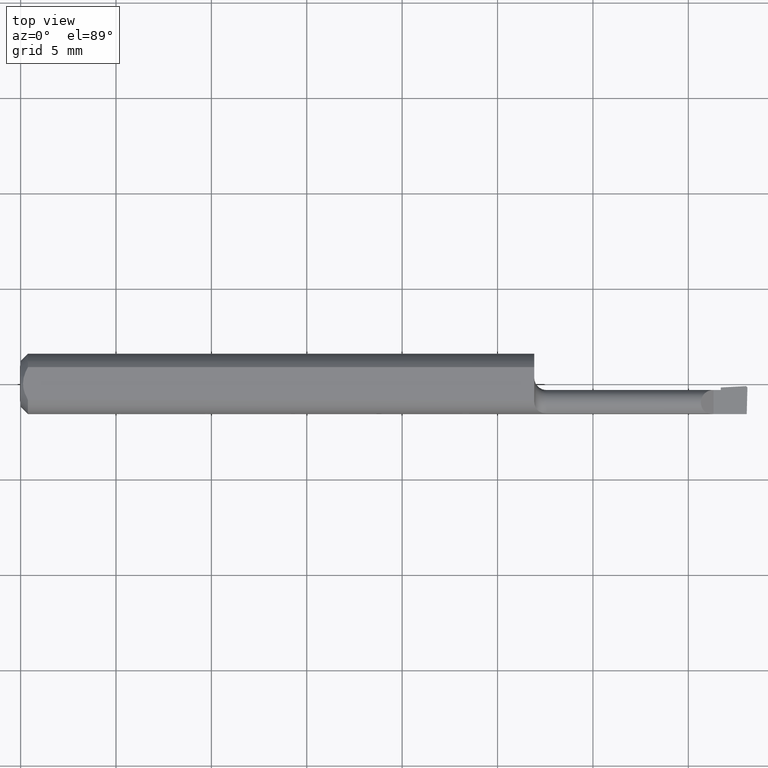
[diagram: clean part render]
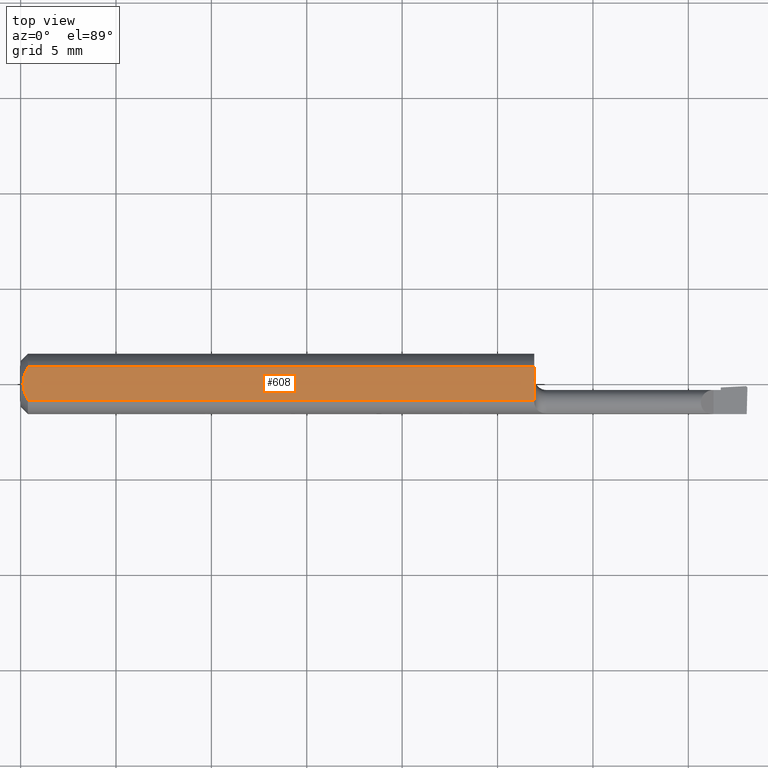
[diagram: same view with one face highlighted and labeled with its STEP entity id]
A machine part, top view. The second image highlights one B-rep face of the part: STEP entity #608.
In plain terms, the highlighted planar face has unit normal (0, -0, -1).
Its self-contained STEP definition (entity closure, byte-faithful):
#31 = CARTESIAN_POINT ( 'NONE',  ( 0.01500000000000000465, 0.03386738844375223462, 0.05234999999999997988 ) ) ;
#34 = CARTESIAN_POINT ( 'NONE',  ( 0.006064493299689842180, 0.01189382783781397189, 0.05235000000000000070 ) ) ;
#50 = CARTESIAN_POINT ( 'NONE',  ( 0.009678036133109307534, -0.02325481837211496039, 0.05235000000000000070 ) ) ;
#61 = CARTESIAN_POINT ( 'NONE',  ( 0.006057557792978140489, -0.01187252718384441616, 0.05234999999999998682 ) ) ;
#76 = B_SPLINE_CURVE_WITH_KNOTS ( 'NONE', 3,
 ( #438, #228, #50, #61, #164, #351 ),
 .UNSPECIFIED., .F., .F.,
 ( 4, 2, 4 ),
 ( 0.002133667072902290657, 0.002585433046183636171, 0.003037199019464981685 ),
 .UNSPECIFIED. ) ;
#126 = VERTEX_POINT ( 'NONE', #244 ) ;
#128 = AXIS2_PLACEMENT_3D ( 'NONE', #330, #361, #400 ) ;
#129 = EDGE_CURVE ( 'NONE', #341, #319, #76, .T. ) ;
#131 = LINE ( 'NONE', #297, #328 ) ;
#153 = DIRECTION ( 'NONE',  ( 1.000000000000000000, 0.0000000000000000000, 0.0000000000000000000 ) ) ;
#159 = CARTESIAN_POINT ( 'NONE',  ( 1.060000000000000275, 0.1123499999999999915, 0.05234999999999998682 ) ) ;
#164 = CARTESIAN_POINT ( 'NONE',  ( 0.004999999999998879473, -0.005957634400466955450, 0.05235000000000000070 ) ) ;
#165 = EDGE_LOOP ( 'NONE', ( #214, #259, #596, #585, #234 ) ) ;
#168 = CARTESIAN_POINT ( 'NONE',  ( 0.01218518006020415795, 0.02868529347538067639, 0.05235000000000000070 ) ) ;
#172 = LINE ( 'NONE', #159, #540 ) ;
#196 = EDGE_CURVE ( 'NONE', #319, #126, #315, .T. ) ;
#205 = DIRECTION ( 'NONE',  ( -5.691349986800549142E-18, -1.000000000000000000, 7.598598113218357399E-17 ) ) ;
#214 = ORIENTED_EDGE ( 'NONE', *, *, #273, .F. ) ;
#218 = EDGE_CURVE ( 'NONE', #372, #341, #416, .T. ) ;
#228 = CARTESIAN_POINT ( 'NONE',  ( 0.01216137397042175820, -0.02864146636719541034, 0.05235000000000000070 ) ) ;
#234 = ORIENTED_EDGE ( 'NONE', *, *, #218, .F. ) ;
#244 = CARTESIAN_POINT ( 'NONE',  ( 0.01500000000000000465, 0.03386738844375223462, 0.05234999999999997988 ) ) ;
#247 = CARTESIAN_POINT ( 'NONE',  ( 0.004999999999989931769, 7.898418181085889318E-16, 0.05235000000000000070 ) ) ;
#257 = VERTEX_POINT ( 'NONE', #302 ) ;
#259 = ORIENTED_EDGE ( 'NONE', *, *, #347, .F. ) ;
#273 = EDGE_CURVE ( 'NONE', #257, #372, #172, .T. ) ;
#297 = CARTESIAN_POINT ( 'NONE',  ( 0.0000000000000000000, 0.03386738844375223462, 0.05234999999999997988 ) ) ;
#302 = CARTESIAN_POINT ( 'NONE',  ( 1.060000000000000275, 0.03386738844375224156, 0.05235000000000000070 ) ) ;
#307 = CARTESIAN_POINT ( 'NONE',  ( 0.004999999999999268051, 0.005945714695019511074, 0.05235000000000000070 ) ) ;
#315 = B_SPLINE_CURVE_WITH_KNOTS ( 'NONE', 3,
 ( #512, #307, #34, #510, #168, #31 ),
 .UNSPECIFIED., .F., .F.,
 ( 4, 2, 4 ),
 ( 0.003037199019464981685, 0.003488061124369676216, 0.003938923229274370746 ),
 .UNSPECIFIED. ) ;
#319 = VERTEX_POINT ( 'NONE', #247 ) ;
#328 = VECTOR ( 'NONE', #153, 39.37007874015748143 ) ;
#330 = CARTESIAN_POINT ( 'NONE',  ( 1.500000000000000222, 0.1123499999999999915, 0.05234999999999998682 ) ) ;
#341 = VERTEX_POINT ( 'NONE', #543 ) ;
#347 = EDGE_CURVE ( 'NONE', #126, #257, #131, .T. ) ;
#351 = CARTESIAN_POINT ( 'NONE',  ( 0.004999999999989931769, 7.898418181085889318E-16, 0.05235000000000000070 ) ) ;
#361 = DIRECTION ( 'NONE',  ( 0.0000000000000000000, -7.598598113218357399E-17, -1.000000000000000000 ) ) ;
#363 = DIRECTION ( 'NONE',  ( -1.000000000000000000, -0.0000000000000000000, -0.0000000000000000000 ) ) ;
#372 = VERTEX_POINT ( 'NONE', #496 ) ;
#400 = DIRECTION ( 'NONE',  ( 0.0000000000000000000, 1.000000000000000000, -7.598598113218357399E-17 ) ) ;
#416 = LINE ( 'NONE', #437, #520 ) ;
#437 = CARTESIAN_POINT ( 'NONE',  ( 0.0000000000000000000, -0.03386738844375222768, 0.05234999999999997988 ) ) ;
#438 = CARTESIAN_POINT ( 'NONE',  ( 0.01500000000000185213, -0.03386738844380016850, 0.05235000000000000070 ) ) ;
#447 = PLANE ( 'NONE',  #128 ) ;
#472 = FACE_OUTER_BOUND ( 'NONE', #165, .T. ) ;
#496 = CARTESIAN_POINT ( 'NONE',  ( 1.060000000000000275, -0.03386738844380023788, 0.05235000000000000070 ) ) ;
#510 = CARTESIAN_POINT ( 'NONE',  ( 0.009669996313769784607, 0.02323004575534281385, 0.05234999999999998682 ) ) ;
#512 = CARTESIAN_POINT ( 'NONE',  ( 0.004999999999989931769, 7.898418181085889318E-16, 0.05235000000000000070 ) ) ;
#520 = VECTOR ( 'NONE', #363, 39.37007874015748143 ) ;
#540 = VECTOR ( 'NONE', #205, 39.37007874015748143 ) ;
#543 = CARTESIAN_POINT ( 'NONE',  ( 0.01500000000000185213, -0.03386738844380016850, 0.05235000000000000070 ) ) ;
#585 = ORIENTED_EDGE ( 'NONE', *, *, #129, .F. ) ;
#596 = ORIENTED_EDGE ( 'NONE', *, *, #196, .F. ) ;
#608 = ADVANCED_FACE ( 'NONE', ( #472 ), #447, .F. ) ;